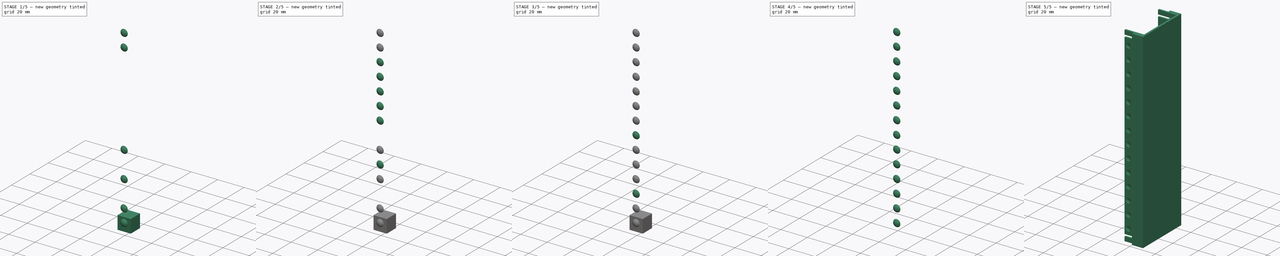
[diagram: build sequence overview — one tinted view per stage of 5, left to right]
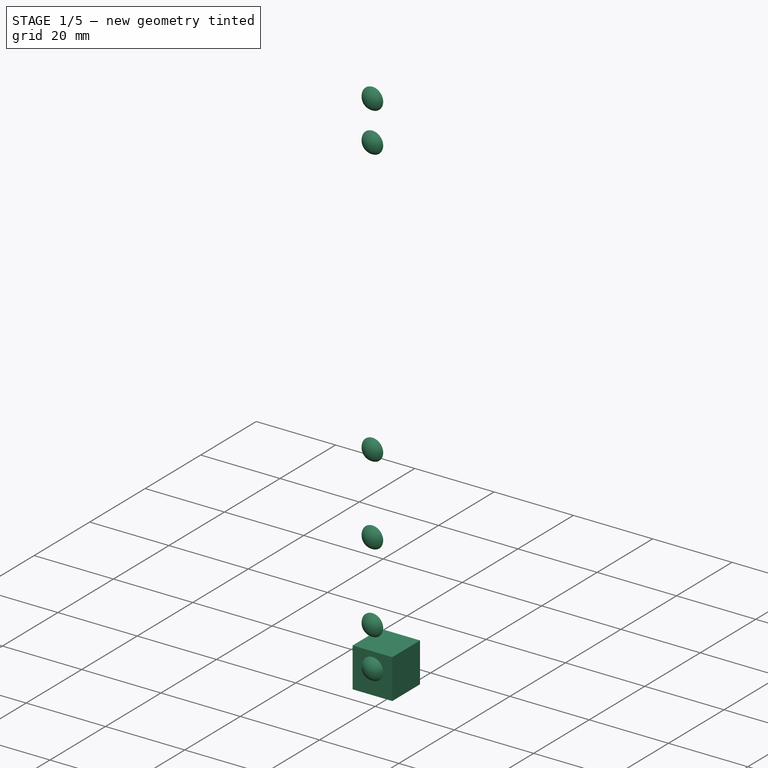
[diagram: stage 1 of 5 — iso view after this stage's code; geometry added in this stage tinted green]
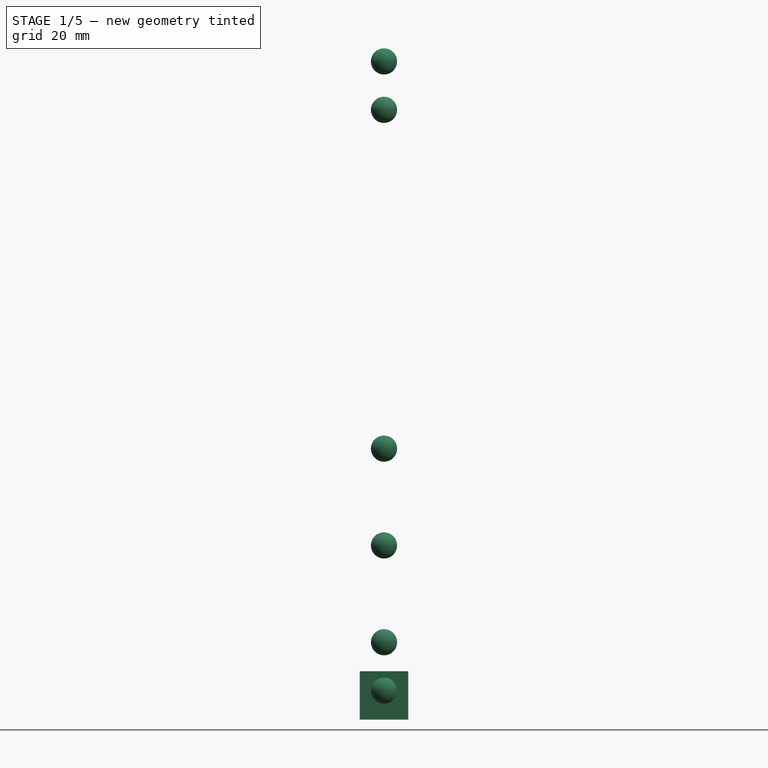
[diagram: stage 1 of 5 — front view after this stage's code; geometry added in this stage tinted green]
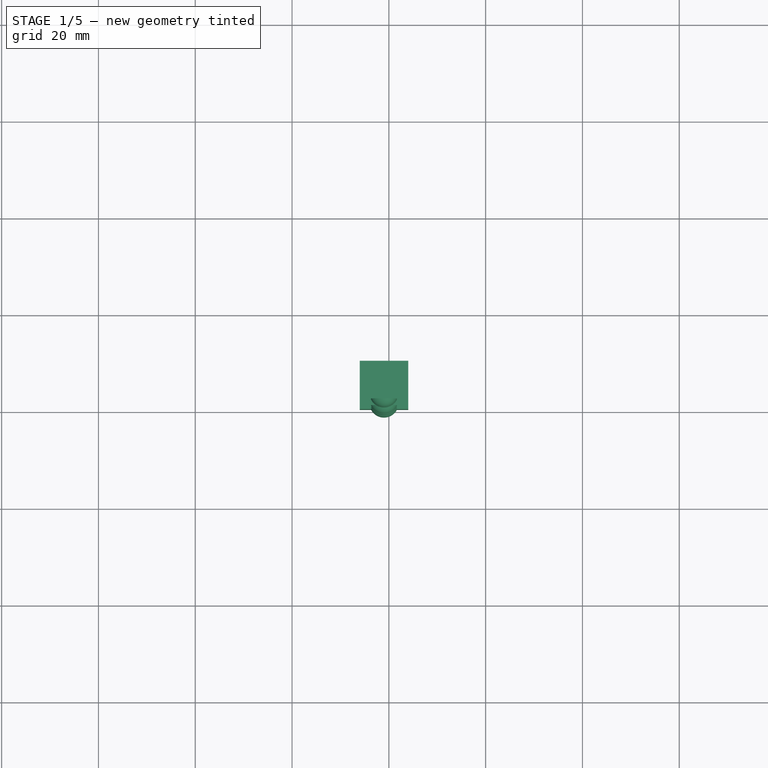
[diagram: stage 1 of 5 — top view after this stage's code; geometry added in this stage tinted green]
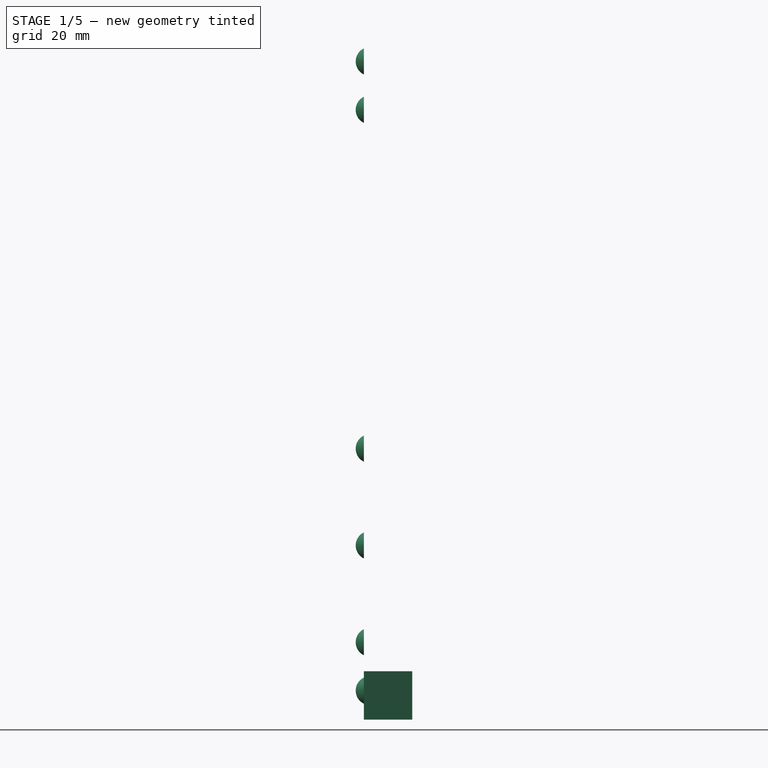
[diagram: stage 1 of 5 — right view after this stage's code; geometry added in this stage tinted green]
FCSTD DOCUMENT  (FreeCAD 0.17R13522 (Git))
Label: BaseClippedSide
License: All rights reserved
LicenseURL: http://en.wikipedia.org/wiki/All_rights_reserved
objects: Part::Cut×29, Part::Box×28, Part::Sphere×28, Part::Extrusion×8, Part::MultiFuse×8, Sketcher::SketchObject×6
note: 107 computed .brp shape members not serialized (recipe doc carries the construction recipe); baked Part::Feature solids carry a one-line shape summary decoded from their .brp

FEATURE [Part::Sphere] Sphere033
  Angle1 = -90
  Angle2 = 90
  Angle3 = 360
  AttacherType = Attacher::AttachEngine3D
  Placement = pos=(-1,21.8,6) rot=(0,0,1;0rad)
  Radius = 3
FEATURE [Part::Box] Box042  label="Cube040"
  AttacherType = Attacher::AttachEngine3D
  Height = 10
  Length = 10
  Placement = pos=(-6,20.5,0) rot=(0,0,1;0rad)
  Width = 10
FEATURE [Part::Box] Box040  label="Cube038"
  AttacherType = Attacher::AttachEngine3D
  Height = 10
  Length = 10
  Placement = pos=(-6,20.5,0) rot=(0,0,1;0rad)
  Width = 10
FEATURE [Part::Cut] Cut039  label="NobHole037"
  Base = -> Sphere033
  Placement = pos=(0,0,120) rot=(0,0,1;0rad)
  Tool = -> Box040
FEATURE [Part::Box] Box049  label="Cube047"
  AttacherType = Attacher::AttachEngine3D
  Height = 10
  Length = 10
  Placement = pos=(-6,20.5,0) rot=(0,0,1;0rad)
  Width = 10
FEATURE [Part::Box] Box047  label="Cube045"
  AttacherType = Attacher::AttachEngine3D
  Height = 10
  Length = 10
  Placement = pos=(-6,20.5,0) rot=(0,0,1;0rad)
  Width = 10
FEATURE [Part::Box] Box046  label="Cube044"
  AttacherType = Attacher::AttachEngine3D
  Height = 10
  Length = 10
  Placement = pos=(-6,20.5,0) rot=(0,0,1;0rad)
  Width = 10
FEATURE [Part::Sphere] Sphere038
  Angle1 = -90
  Angle2 = 90
  Angle3 = 360
  AttacherType = Attacher::AttachEngine3D
  Placement = pos=(-1,21.8,6) rot=(0,0,1;0rad)
  Radius = 3
FEATURE [Part::Sphere] Sphere036
  Angle1 = -90
  Angle2 = 90
  Angle3 = 360
  AttacherType = Attacher::AttachEngine3D
  Placement = pos=(-1,21.8,6) rot=(0,0,1;0rad)
  Radius = 3
FEATURE [Part::Cut] Cut041  label="NobHole039"
  Base = -> Sphere036
  Placement = pos=(0,0,30) rot=(0,0,1;0rad)
  Tool = -> Box049
FEATURE [Part::Sphere] Sphere039
  Angle1 = -90
  Angle2 = 90
  Angle3 = 360
  AttacherType = Attacher::AttachEngine3D
  Placement = pos=(-1,21.8,6) rot=(0,0,1;0rad)
  Radius = 3
FEATURE [Part::Sphere] Sphere041
  Angle1 = -90
  Angle2 = 90
  Angle3 = 360
  AttacherType = Attacher::AttachEngine3D
  Placement = pos=(-1,21.8,6) rot=(0,0,1;0rad)
  Radius = 3
FEATURE [Part::Cut] Cut040  label="NobHole038"
  Base = -> Sphere041
  Placement = pos=(0,0,10) rot=(0,0,1;0rad)
  Tool = -> Box042
FEATURE [Part::Sphere] Sphere037
  Angle1 = -90
  Angle2 = 90
  Angle3 = 360
  AttacherType = Attacher::AttachEngine3D
  Placement = pos=(-1,21.8,6) rot=(0,0,1;0rad)
  Radius = 3
FEATURE [Part::Box] Box045  label="Cube043"
  AttacherType = Attacher::AttachEngine3D
  Height = 10
  Length = 10
  Placement = pos=(-6,20.5,0) rot=(0,0,1;0rad)
  Width = 10
FEATURE [Part::Box] Box048  label="Cube046"
  AttacherType = Attacher::AttachEngine3D
  Height = 10
  Length = 10
  Placement = pos=(-6,20.5,0) rot=(0,0,1;0rad)
  Width = 10
FEATURE [Part::Cut] Cut042  label="NobHole040"
  Base = -> Sphere037
  Placement = pos=(0,0,50) rot=(0,0,1;0rad)
  Tool = -> Box048
FEATURE [Part::Sphere] Sphere040
  Angle1 = -90
  Angle2 = 90
  Angle3 = 360
  AttacherType = Attacher::AttachEngine3D
  Placement = pos=(-1,21.8,6) rot=(0,0,1;0rad)
  Radius = 3
FEATURE [Part::Sphere] Sphere042
  Angle1 = -90
  Angle2 = 90
  Angle3 = 360
  AttacherType = Attacher::AttachEngine3D
  Placement = pos=(-1,21.8,6) rot=(0,0,1;0rad)
  Radius = 3
FEATURE [Part::Cut] Cut043  label="NobHole041"
  Base = -> Sphere042
  Placement = pos=(0,0,130) rot=(0,0,1;0rad)
  Tool = -> Box045
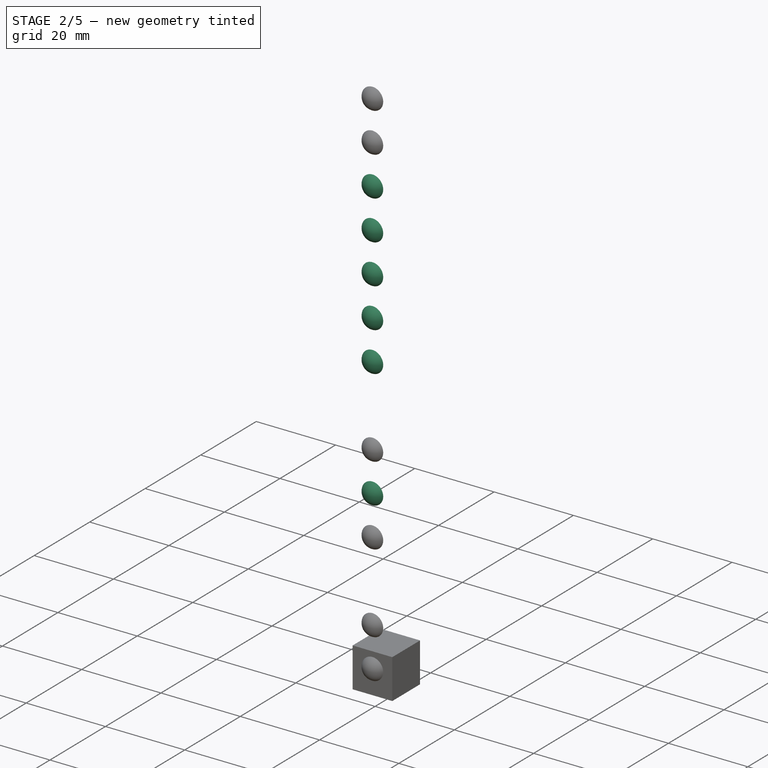
[diagram: stage 2 of 5 — iso view after this stage's code; geometry added in this stage tinted green]
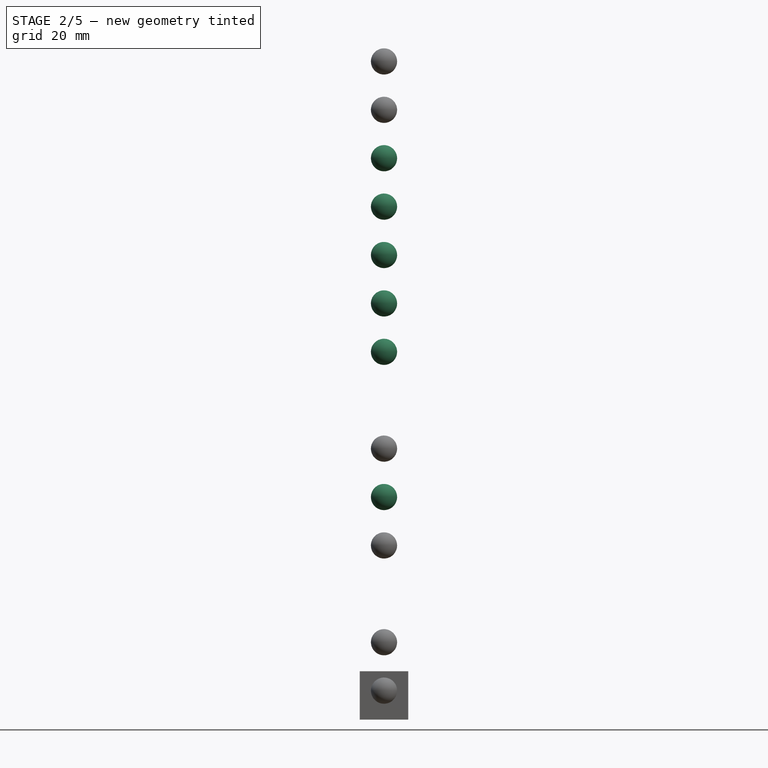
[diagram: stage 2 of 5 — front view after this stage's code; geometry added in this stage tinted green]
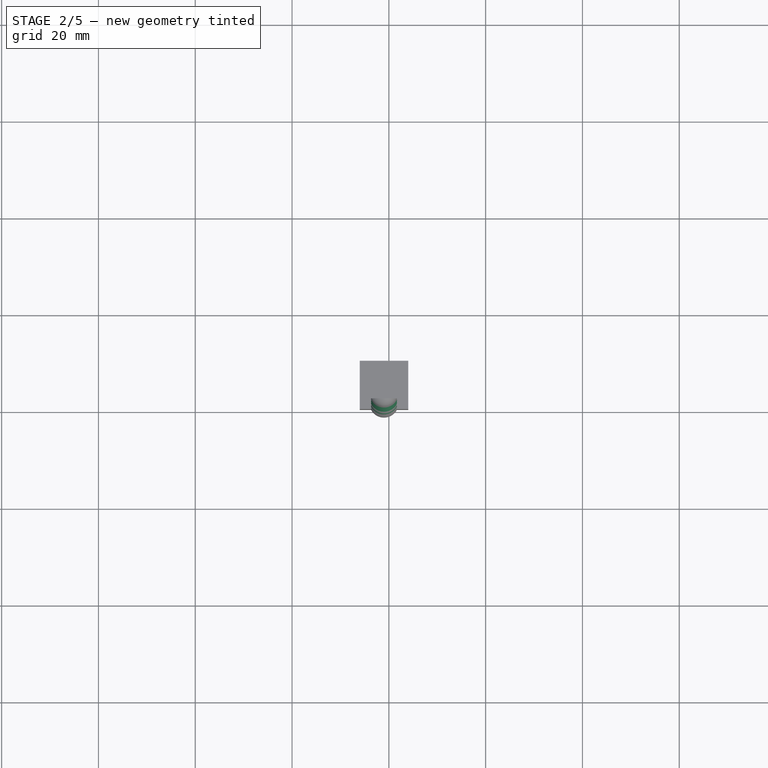
[diagram: stage 2 of 5 — top view after this stage's code; geometry added in this stage tinted green]
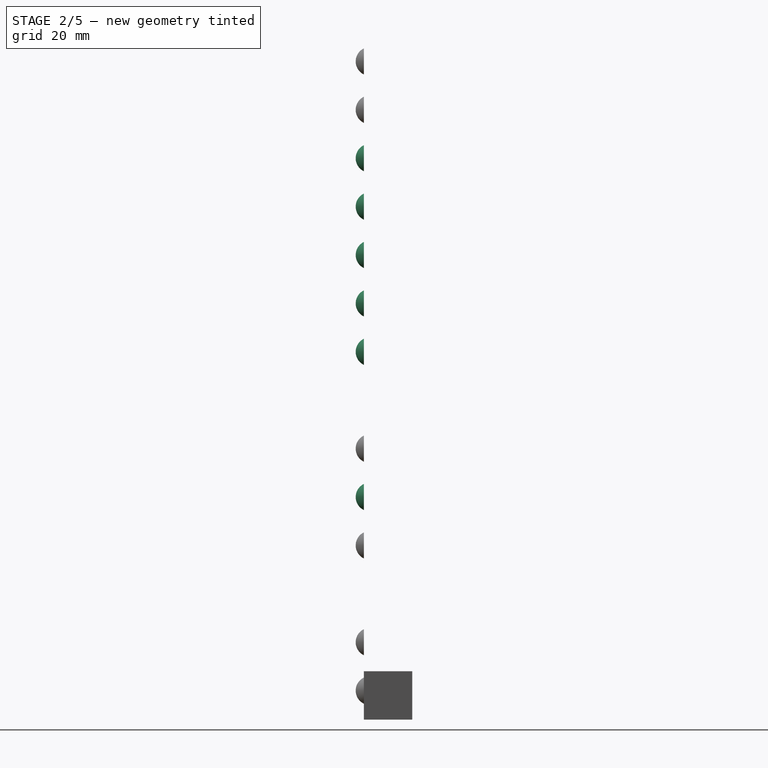
[diagram: stage 2 of 5 — right view after this stage's code; geometry added in this stage tinted green]
FEATURE [Part::Sphere] Sphere031
  Angle1 = -90
  Angle2 = 90
  Angle3 = 360
  AttacherType = Attacher::AttachEngine3D
  Placement = pos=(-1,21.8,6) rot=(0,0,1;0rad)
  Radius = 3
FEATURE [Part::Sphere] Sphere030
  Angle1 = -90
  Angle2 = 90
  Angle3 = 360
  AttacherType = Attacher::AttachEngine3D
  Placement = pos=(-1,21.8,6) rot=(0,0,1;0rad)
  Radius = 3
FEATURE [Part::Box] Box036  label="Cube034"
  AttacherType = Attacher::AttachEngine3D
  Height = 10
  Length = 10
  Placement = pos=(-6,20.5,0) rot=(0,0,1;0rad)
  Width = 10
FEATURE [Part::Sphere] Sphere032
  Angle1 = -90
  Angle2 = 90
  Angle3 = 360
  AttacherType = Attacher::AttachEngine3D
  Placement = pos=(-1,21.8,6) rot=(0,0,1;0rad)
  Radius = 3
FEATURE [Part::Sphere] Sphere029
  Angle1 = -90
  Angle2 = 90
  Angle3 = 360
  AttacherType = Attacher::AttachEngine3D
  Placement = pos=(-1,21.8,6) rot=(0,0,1;0rad)
  Radius = 3
FEATURE [Part::Cut] Cut036  label="NobHole034"
  Base = -> Sphere029
  Placement = pos=(0,0,90) rot=(0,0,1;0rad)
  Tool = -> Box036
FEATURE [Part::Box] Box044  label="Cube042"
  AttacherType = Attacher::AttachEngine3D
  Height = 10
  Length = 10
  Placement = pos=(-6,20.5,0) rot=(0,0,1;0rad)
  Width = 10
FEATURE [Part::Box] Box039  label="Cube037"
  AttacherType = Attacher::AttachEngine3D
  Height = 10
  Length = 10
  Placement = pos=(-6,20.5,0) rot=(0,0,1;0rad)
  Width = 10
FEATURE [Part::Cut] Cut037  label="NobHole035"
  Base = -> Sphere031
  Placement = pos=(0,0,100) rot=(0,0,1;0rad)
  Tool = -> Box039
FEATURE [Part::Box] Box043  label="Cube041"
  AttacherType = Attacher::AttachEngine3D
  Height = 10
  Length = 10
  Placement = pos=(-6,20.5,0) rot=(0,0,1;0rad)
  Width = 10
FEATURE [Part::Box] Box037  label="Cube035"
  AttacherType = Attacher::AttachEngine3D
  Height = 10
  Length = 10
  Placement = pos=(-6,20.5,0) rot=(0,0,1;0rad)
  Width = 10
FEATURE [Part::Cut] Cut033  label="NobHole031"
  Base = -> Sphere030
  Placement = pos=(0,0,110) rot=(0,0,1;0rad)
  Tool = -> Box037
FEATURE [Part::Box] Box038  label="Cube036"
  AttacherType = Attacher::AttachEngine3D
  Height = 10
  Length = 10
  Placement = pos=(-6,20.5,0) rot=(0,0,1;0rad)
  Width = 10
FEATURE [Part::Box] Box041  label="Cube039"
  AttacherType = Attacher::AttachEngine3D
  Height = 10
  Length = 10
  Placement = pos=(-6,20.5,0) rot=(0,0,1;0rad)
  Width = 10
FEATURE [Part::Cut] Cut032  label="NobHole030"
  Base = -> Sphere032
  Placement = pos=(0,0,80) rot=(0,0,1;0rad)
  Tool = -> Box041
FEATURE [Part::Sphere] Sphere034
  Angle1 = -90
  Angle2 = 90
  Angle3 = 360
  AttacherType = Attacher::AttachEngine3D
  Placement = pos=(-1,21.8,6) rot=(0,0,1;0rad)
  Radius = 3
FEATURE [Part::Cut] Cut034  label="NobHole032"
  Base = -> Sphere034
  Placement = pos=(0,0,70) rot=(0,0,1;0rad)
  Tool = -> Box038
FEATURE [Part::Sphere] Sphere035
  Angle1 = -90
  Angle2 = 90
  Angle3 = 360
  AttacherType = Attacher::AttachEngine3D
  Placement = pos=(-1,21.8,6) rot=(0,0,1;0rad)
  Radius = 3
FEATURE [Part::Cut] Cut035  label="NobHole033"
  Base = -> Sphere035
  Placement = pos=(0,0,40) rot=(0,0,1;0rad)
  Tool = -> Box047
FEATURE [Part::Cut] Cut038  label="NobHole036"
  Base = -> Sphere040
  Tool = -> Box044
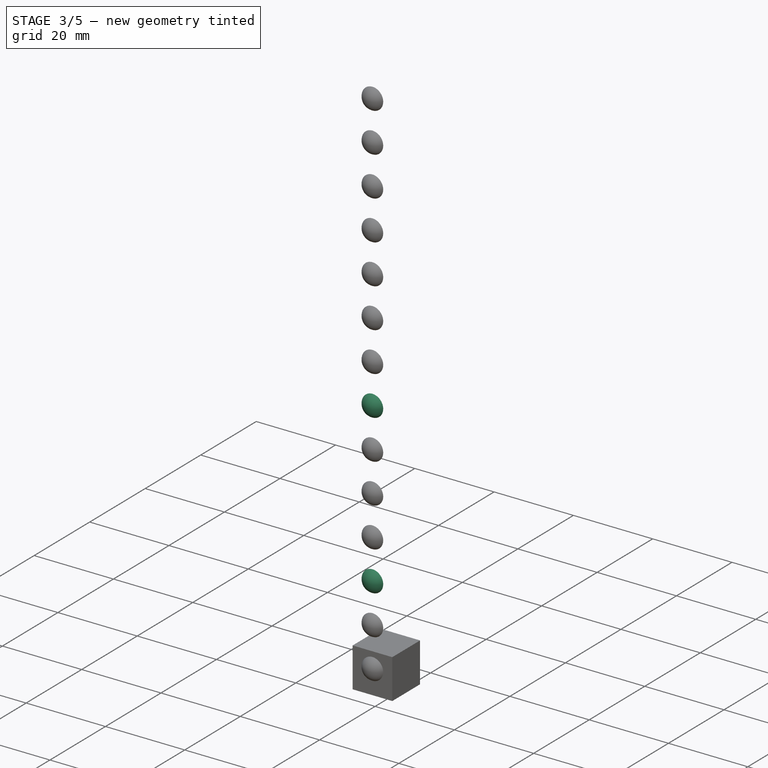
[diagram: stage 3 of 5 — iso view after this stage's code; geometry added in this stage tinted green]
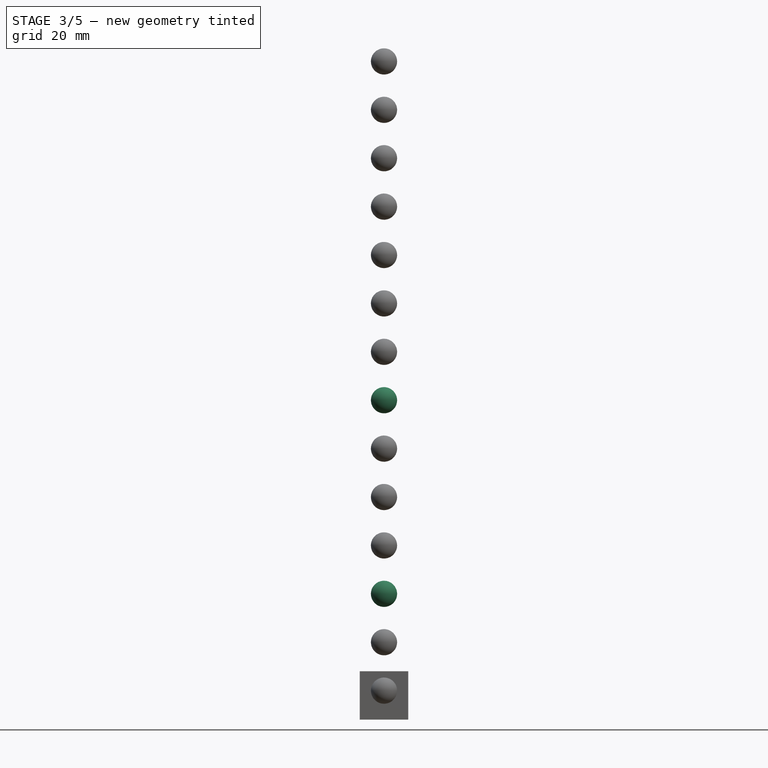
[diagram: stage 3 of 5 — front view after this stage's code; geometry added in this stage tinted green]
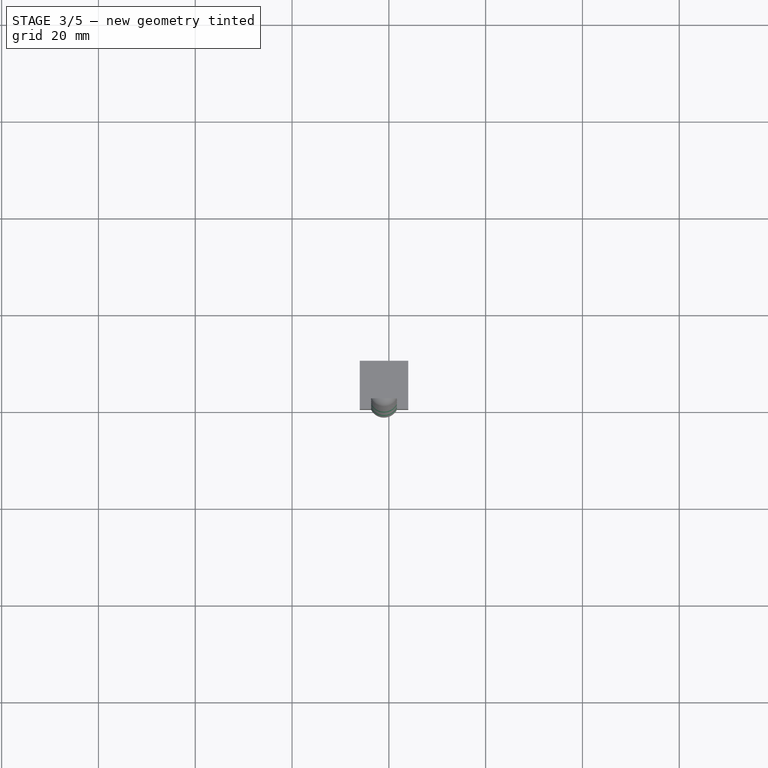
[diagram: stage 3 of 5 — top view after this stage's code; geometry added in this stage tinted green]
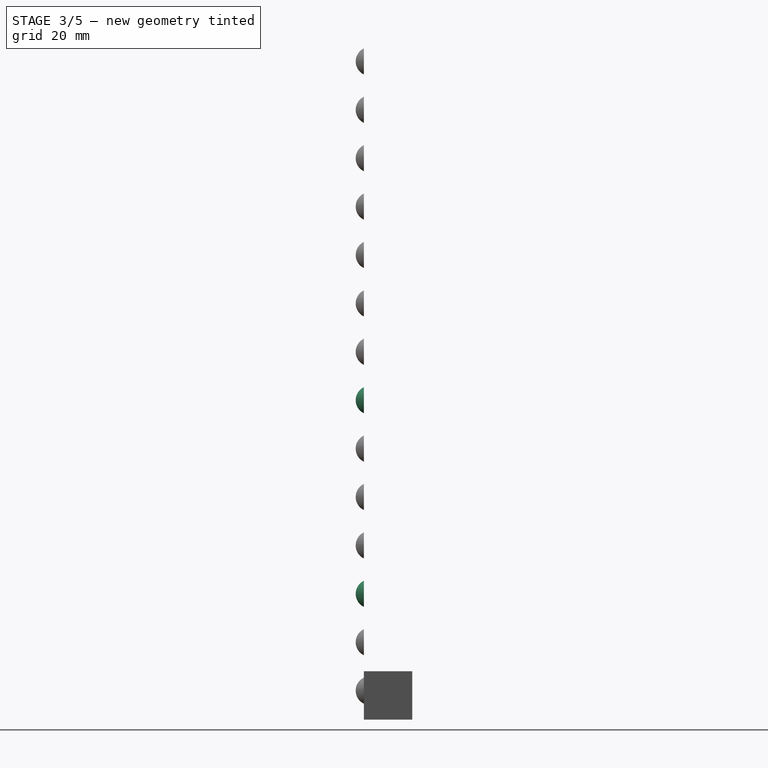
[diagram: stage 3 of 5 — right view after this stage's code; geometry added in this stage tinted green]
FEATURE [Part::Box] Box019  label="Cube017"
  AttacherType = Attacher::AttachEngine3D
  Height = 10
  Length = 10
  Placement = pos=(-6,20.5,0) rot=(0,0,1;0rad)
  Width = 10
FEATURE [Part::Box] Box018  label="Cube016"
  AttacherType = Attacher::AttachEngine3D
  Height = 10
  Length = 10
  Placement = pos=(-6,20.5,0) rot=(0,0,1;0rad)
  Width = 10
FEATURE [Part::Sphere] Sphere012
  Angle1 = -90
  Angle2 = 90
  Angle3 = 360
  AttacherType = Attacher::AttachEngine3D
  Placement = pos=(-1,21.8,6) rot=(0,0,1;0rad)
  Radius = 3
FEATURE [Part::Sphere] Sphere011
  Angle1 = -90
  Angle2 = 90
  Angle3 = 360
  AttacherType = Attacher::AttachEngine3D
  Placement = pos=(-1,21.8,6) rot=(0,0,1;0rad)
  Radius = 3
FEATURE [Part::Box] Box016  label="Cube014"
  AttacherType = Attacher::AttachEngine3D
  Height = 10
  Length = 10
  Placement = pos=(-6,20.5,0) rot=(0,0,1;0rad)
  Width = 10
FEATURE [Part::Sphere] Sphere009
  Angle1 = -90
  Angle2 = 90
  Angle3 = 360
  AttacherType = Attacher::AttachEngine3D
  Placement = pos=(-1,21.8,6) rot=(0,0,1;0rad)
  Radius = 3
FEATURE [Part::Sphere] Sphere004
  Angle1 = -90
  Angle2 = 90
  Angle3 = 360
  AttacherType = Attacher::AttachEngine3D
  Placement = pos=(-1,21.8,6) rot=(0,0,1;0rad)
  Radius = 3
FEATURE [Part::Box] Box011  label="Cube009"
  AttacherType = Attacher::AttachEngine3D
  Height = 10
  Length = 10
  Placement = pos=(-6,20.5,0) rot=(0,0,1;0rad)
  Width = 10
FEATURE [Part::Box] Box010  label="Cube008"
  AttacherType = Attacher::AttachEngine3D
  Height = 10
  Length = 10
  Placement = pos=(-6,20.5,0) rot=(0,0,1;0rad)
  Width = 10
FEATURE [Part::Sphere] Sphere003
  Angle1 = -90
  Angle2 = 90
  Angle3 = 360
  AttacherType = Attacher::AttachEngine3D
  Placement = pos=(-1,21.8,6) rot=(0,0,1;0rad)
  Radius = 3
FEATURE [Part::Cut] Cut010  label="NobHole008"
  Base = -> Sphere009
  Placement = pos=(0,0,80) rot=(0,0,1;0rad)
  Tool = -> Box016
FEATURE [Part::Cut] Cut004  label="NobHole002"
  Base = -> Sphere003
  Placement = pos=(0,0,20) rot=(0,0,1;0rad)
  Tool = -> Box010
FEATURE [Part::Cut] Cut012  label="NobHole010"
  Base = -> Sphere011
  Placement = pos=(0,0,100) rot=(0,0,1;0rad)
  Tool = -> Box018
FEATURE [Part::Cut] Cut013  label="NobHole011"
  Base = -> Sphere012
  Placement = pos=(0,0,110) rot=(0,0,1;0rad)
  Tool = -> Box019
FEATURE [Part::Cut] Cut005  label="NobHole003"
  Base = -> Sphere004
  Placement = pos=(0,0,30) rot=(0,0,1;0rad)
  Tool = -> Box011
FEATURE [Part::Sphere] Sphere013
  Angle1 = -90
  Angle2 = 90
  Angle3 = 360
  AttacherType = Attacher::AttachEngine3D
  Placement = pos=(-1,21.8,6) rot=(0,0,1;0rad)
  Radius = 3
FEATURE [Part::Box] Box020  label="Cube018"
  AttacherType = Attacher::AttachEngine3D
  Height = 10
  Length = 10
  Placement = pos=(-6,20.5,0) rot=(0,0,1;0rad)
  Width = 10
FEATURE [Part::Sphere] Sphere014
  Angle1 = -90
  Angle2 = 90
  Angle3 = 360
  AttacherType = Attacher::AttachEngine3D
  Placement = pos=(-1,21.8,6) rot=(0,0,1;0rad)
  Radius = 3
FEATURE [Part::Box] Box021  label="Cube019"
  AttacherType = Attacher::AttachEngine3D
  Height = 10
  Length = 10
  Placement = pos=(-6,20.5,0) rot=(0,0,1;0rad)
  Width = 10
FEATURE [Part::Cut] Cut030  label="NobHole028"
  Base = -> Sphere038
  Placement = pos=(0,0,20) rot=(0,0,1;0rad)
  Tool = -> Box043
FEATURE [Part::Cut] Cut031  label="NobHole029"
  Base = -> Sphere039
  Placement = pos=(0,0,60) rot=(0,0,1;0rad)
  Tool = -> Box046
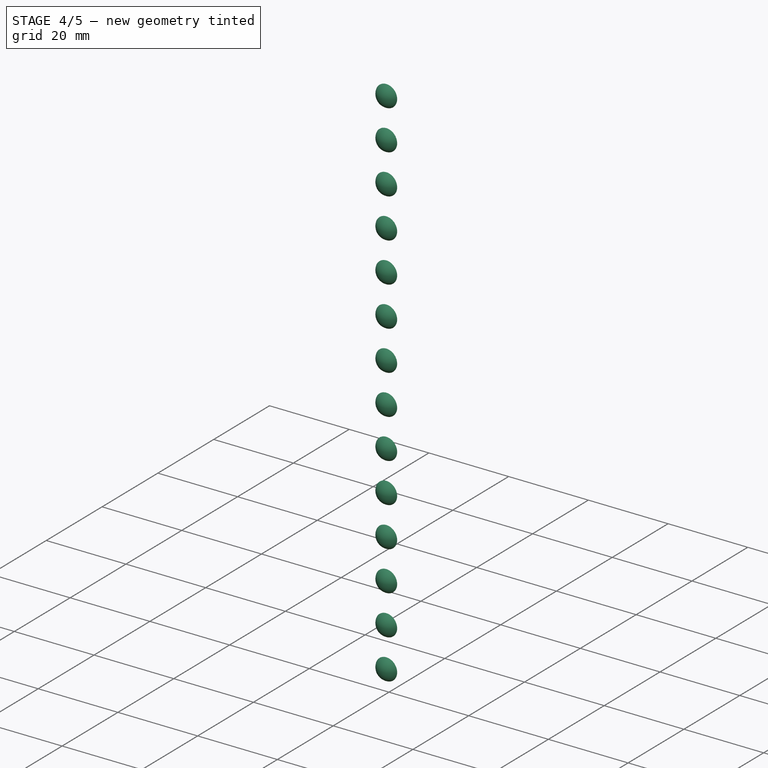
[diagram: stage 4 of 5 — iso view after this stage's code; geometry added in this stage tinted green]
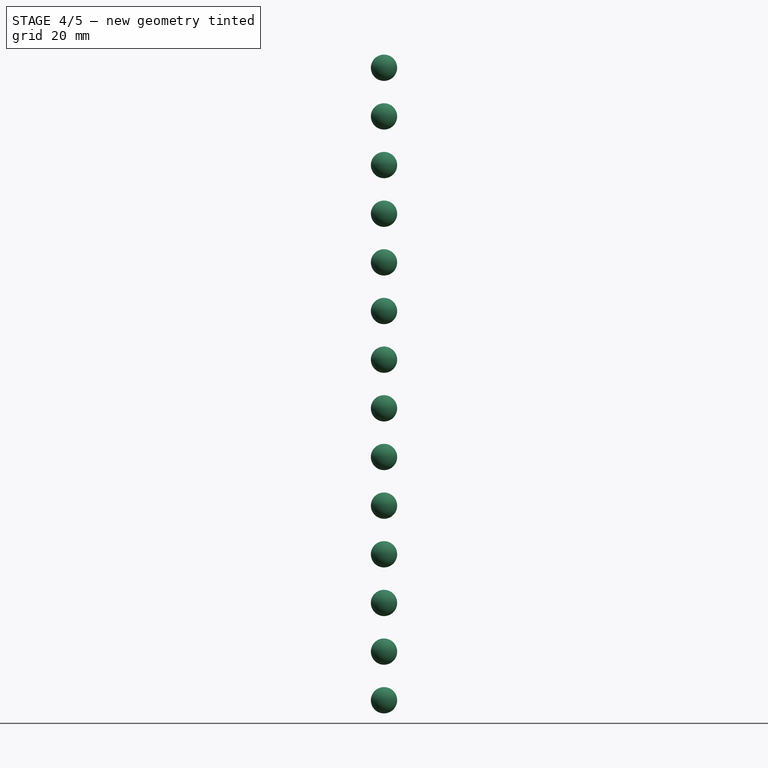
[diagram: stage 4 of 5 — front view after this stage's code; geometry added in this stage tinted green]
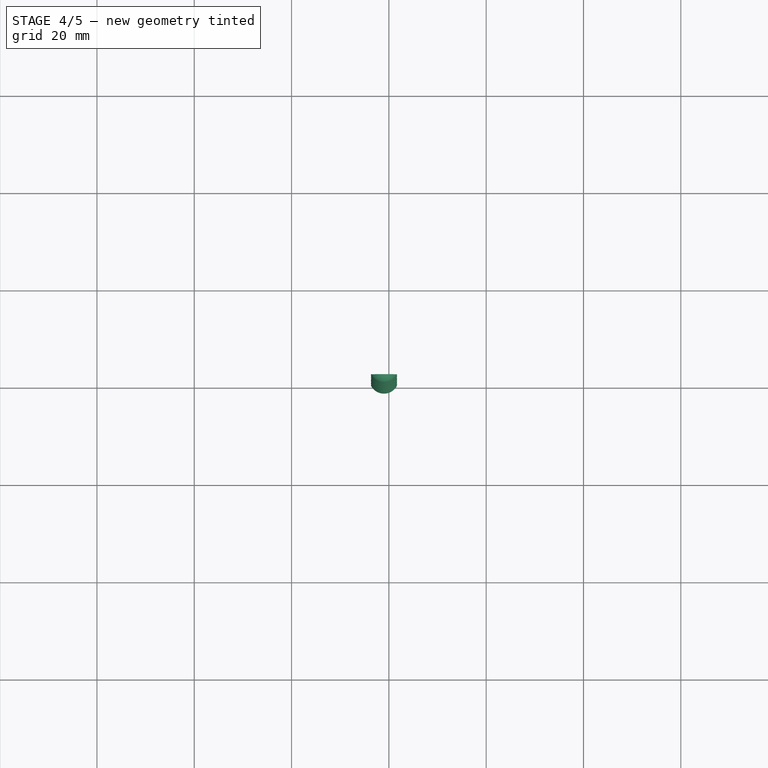
[diagram: stage 4 of 5 — top view after this stage's code; geometry added in this stage tinted green]
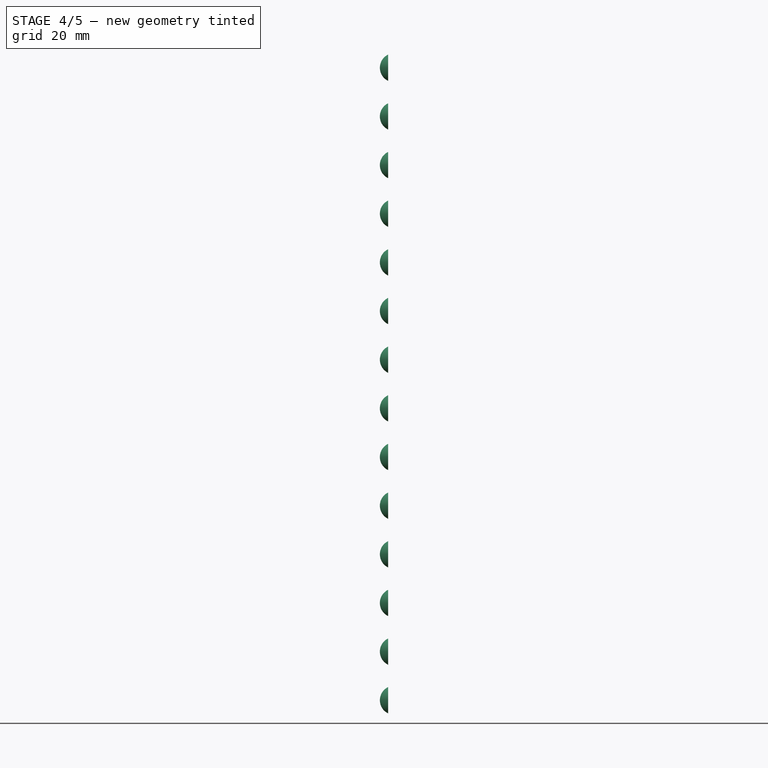
[diagram: stage 4 of 5 — right view after this stage's code; geometry added in this stage tinted green]
FEATURE [Part::Box] Box017  label="Cube015"
  AttacherType = Attacher::AttachEngine3D
  Height = 10
  Length = 10
  Placement = pos=(-6,20.5,0) rot=(0,0,1;0rad)
  Width = 10
FEATURE [Part::Sphere] Sphere010
  Angle1 = -90
  Angle2 = 90
  Angle3 = 360
  AttacherType = Attacher::AttachEngine3D
  Placement = pos=(-1,21.8,6) rot=(0,0,1;0rad)
  Radius = 3
FEATURE [Part::Box] Box013  label="Cube011"
  AttacherType = Attacher::AttachEngine3D
  Height = 10
  Length = 10
  Placement = pos=(-6,20.5,0) rot=(0,0,1;0rad)
  Width = 10
FEATURE [Part::Sphere] Sphere007
  Angle1 = -90
  Angle2 = 90
  Angle3 = 360
  AttacherType = Attacher::AttachEngine3D
  Placement = pos=(-1,21.8,6) rot=(0,0,1;0rad)
  Radius = 3
FEATURE [Part::Box] Box015  label="Cube013"
  AttacherType = Attacher::AttachEngine3D
  Height = 10
  Length = 10
  Placement = pos=(-6,20.5,0) rot=(0,0,1;0rad)
  Width = 10
FEATURE [Part::Sphere] Sphere008
  Angle1 = -90
  Angle2 = 90
  Angle3 = 360
  AttacherType = Attacher::AttachEngine3D
  Placement = pos=(-1,21.8,6) rot=(0,0,1;0rad)
  Radius = 3
FEATURE [Part::Sphere] Sphere006
  Angle1 = -90
  Angle2 = 90
  Angle3 = 360
  AttacherType = Attacher::AttachEngine3D
  Placement = pos=(-1,21.8,6) rot=(0,0,1;0rad)
  Radius = 3
FEATURE [Part::Box] Box012  label="Cube010"
  AttacherType = Attacher::AttachEngine3D
  Height = 10
  Length = 10
  Placement = pos=(-6,20.5,0) rot=(0,0,1;0rad)
  Width = 10
FEATURE [Part::Box] Box014  label="Cube012"
  AttacherType = Attacher::AttachEngine3D
  Height = 10
  Length = 10
  Placement = pos=(-6,20.5,0) rot=(0,0,1;0rad)
  Width = 10
FEATURE [Part::Sphere] Sphere005
  Angle1 = -90
  Angle2 = 90
  Angle3 = 360
  AttacherType = Attacher::AttachEngine3D
  Placement = pos=(-1,21.8,6) rot=(0,0,1;0rad)
  Radius = 3
FEATURE [Part::Box] Box009  label="Cube007"
  AttacherType = Attacher::AttachEngine3D
  Height = 10
  Length = 10
  Placement = pos=(-6,20.5,0) rot=(0,0,1;0rad)
  Width = 10
FEATURE [Part::Sphere] Sphere002
  Angle1 = -90
  Angle2 = 90
  Angle3 = 360
  AttacherType = Attacher::AttachEngine3D
  Placement = pos=(-1,21.8,6) rot=(0,0,1;0rad)
  Radius = 3
FEATURE [Part::Cut] Cut003  label="NobHole001"
  Base = -> Sphere002
  Placement = pos=(0,0,10) rot=(0,0,1;0rad)
  Tool = -> Box009
FEATURE [Part::Cut] Cut006  label="NobHole004"
  Base = -> Sphere005
  Placement = pos=(0,0,40) rot=(0,0,1;0rad)
  Tool = -> Box012
FEATURE [Part::Cut] Cut011  label="NobHole009"
  Base = -> Sphere010
  Placement = pos=(0,0,90) rot=(0,0,1;0rad)
  Tool = -> Box017
FEATURE [Part::Cut] Cut008  label="NobHole006"
  Base = -> Sphere007
  Placement = pos=(0,0,60) rot=(0,0,1;0rad)
  Tool = -> Box014
FEATURE [Part::Cut] Cut007  label="NobHole005"
  Base = -> Sphere006
  Placement = pos=(0,0,50) rot=(0,0,1;0rad)
  Tool = -> Box013
FEATURE [Part::Cut] Cut009  label="NobHole007"
  Base = -> Sphere008
  Placement = pos=(0,0,70) rot=(0,0,1;0rad)
  Tool = -> Box015
FEATURE [Part::Cut] Cut014  label="NobHole012"
  Base = -> Sphere013
  Placement = pos=(0,0,120) rot=(0,0,1;0rad)
  Tool = -> Box020
FEATURE [Part::Cut] Cut015  label="NobHole013"
  Base = -> Sphere014
  Placement = pos=(0,0,130) rot=(0,0,1;0rad)
  Tool = -> Box021
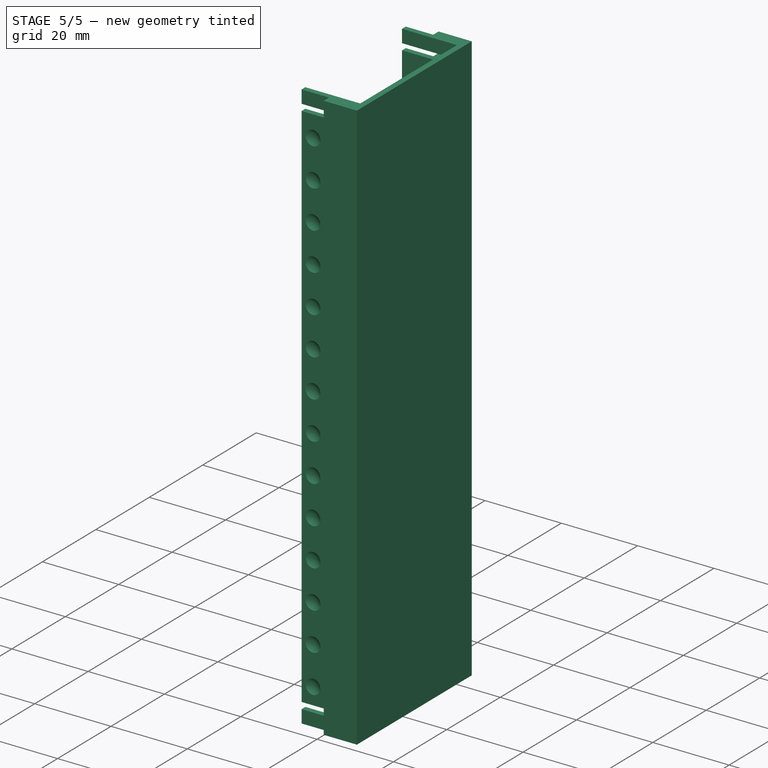
[diagram: stage 5 of 5 — iso view after this stage's code; geometry added in this stage tinted green]
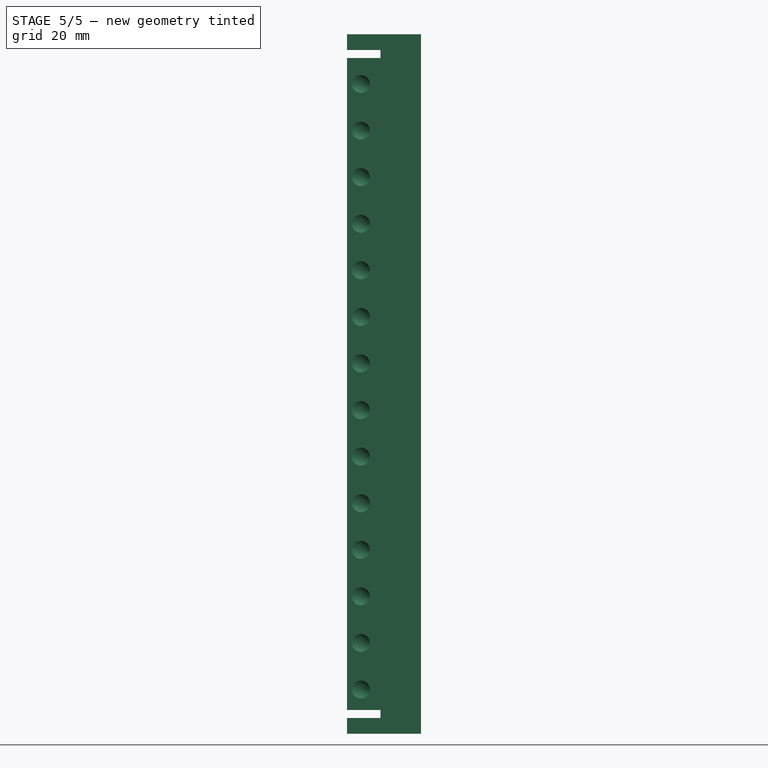
[diagram: stage 5 of 5 — front view after this stage's code; geometry added in this stage tinted green]
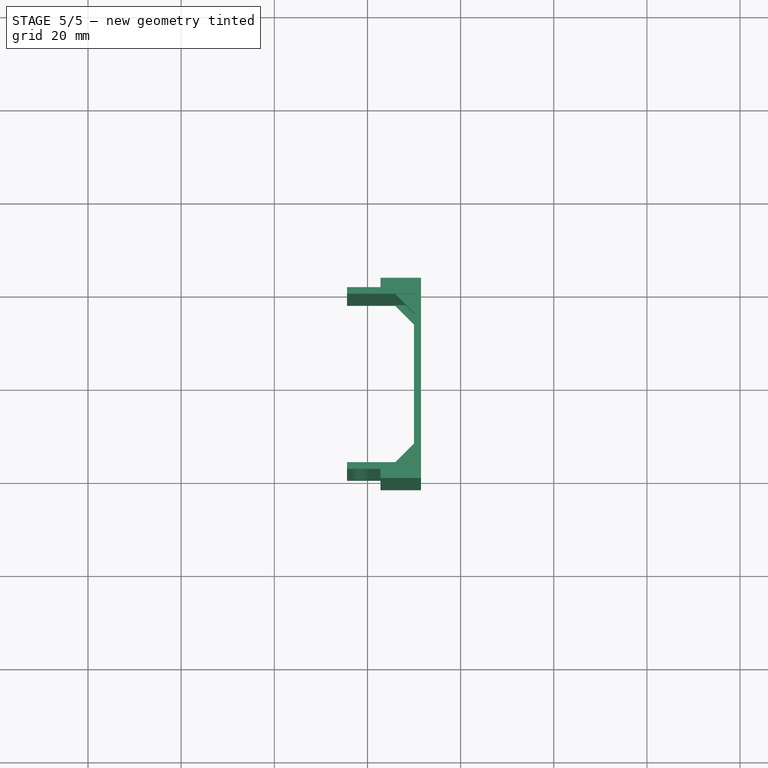
[diagram: stage 5 of 5 — top view after this stage's code; geometry added in this stage tinted green]
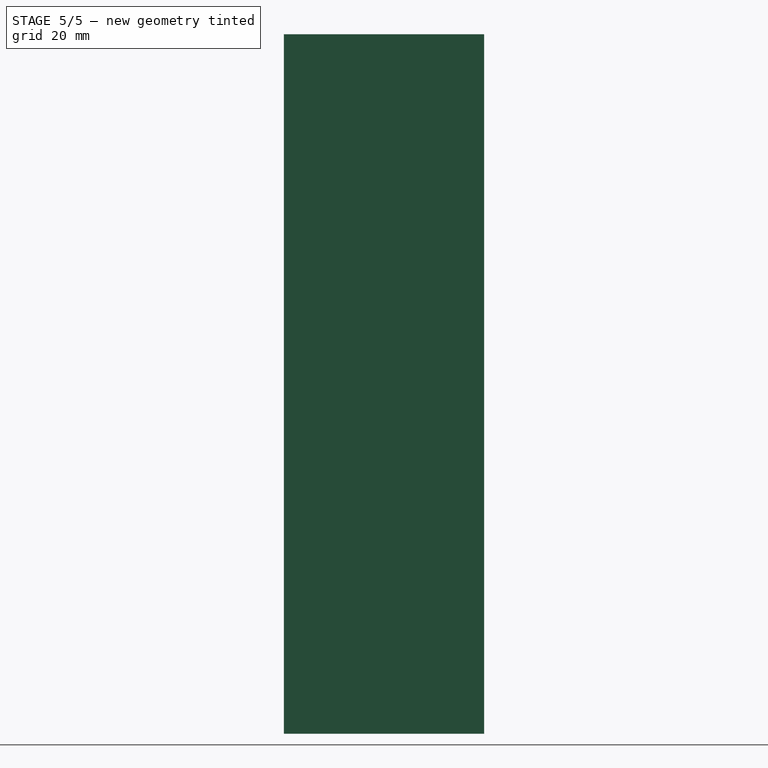
[diagram: stage 5 of 5 — right view after this stage's code; geometry added in this stage tinted green]
FEATURE [Part::Box] Box008  label="Cube006"
  AttacherType = Attacher::AttachEngine3D
  Height = 10
  Length = 10
  Placement = pos=(-6,20.5,0) rot=(0,0,1;0rad)
  Width = 10
FEATURE [Part::Sphere] Sphere001
  Angle1 = -90
  Angle2 = 90
  Angle3 = 360
  AttacherType = Attacher::AttachEngine3D
  Placement = pos=(-1,21.8,6) rot=(0,0,1;0rad)
  Radius = 3
FEATURE [Part::Cut] Cut002  label="NobHole"
  Base = -> Sphere001
  Tool = -> Box008
FEATURE [Sketcher::SketchObject] Sketch006
  sketch-geometry (12):
    g0: LineSegment StartX=-14.4 StartY=18.1 StartZ=0 EndX=0 EndY=18.1 EndZ=0
    g1: LineSegment StartX=-14.4 StartY=19.5 StartZ=0 EndX=-7.2 EndY=19.5 EndZ=0
    g2: LineSegment StartX=-7.2 StartY=19.5 StartZ=0 EndX=-7.2 EndY=21 EndZ=0
    g3: LineSegment StartX=-7.2 StartY=21 StartZ=0 EndX=1 EndY=21 EndZ=0
    g4: LineSegment StartX=1 StartY=21 StartZ=0 EndX=1 EndY=-21 EndZ=0
    g5: LineSegment StartX=1 StartY=-21 StartZ=0 EndX=-7.2 EndY=-21 EndZ=0
    g6: LineSegment StartX=-7.2 StartY=-21 StartZ=0 EndX=-7.2 EndY=-19.5 EndZ=0
    g7: LineSegment StartX=-7.2 StartY=-19.5 StartZ=0 EndX=-14.4 EndY=-19.5 EndZ=0
    g8: LineSegment StartX=-14.4 StartY=-19.5 StartZ=0 EndX=-14.4 EndY=-18.1 EndZ=0
    g9: LineSegment StartX=-14.4 StartY=-18.1 StartZ=0 EndX=0 EndY=-18.1 EndZ=0
    g10: LineSegment StartX=0 StartY=-18.1 StartZ=0 EndX=0 EndY=18.1 EndZ=0
    g11: LineSegment StartX=-14.4 StartY=18.1 StartZ=0 EndX=-14.4 EndY=19.5 EndZ=0
  constraints (35):
    c: Coincident(g11,g0)
    c: Coincident(g11,g1)
    c: Coincident(g2,g1)
    c: Coincident(g2,g3)
    c: Coincident(g4,g3)
    c: Coincident(g8,g9)
    c: Coincident(g8,g7)
    c: Coincident(g7,g6)
    c: Coincident(g6,g5)
    c: Coincident(g4,g5)
    c: Parallel(g11,g2)
    c: Parallel(g10,g4)
    c: Parallel(g6,g8)
    c: Parallel(g8,g-2)
    c: Parallel(g3,g1)
    c: Parallel(g1,g0)
    c: Parallel(g0,g9)
    c: Parallel(g9,g7)
    c: Distance(g4) = 42
    c: Equal(g0,g9)
    c: DistanceX(g10,g4) = 1
    c: Symmetric(g10,g10,g-1)
    c: PointOnObject(g10,g-2)
    c: DistanceY(g4,g10) = 2.9
    c: DistanceY(g10,g3) = 2.9
    c: Distance(g2) = 1.5
    c: Angle(g2,g3) = 1.5708
    c: Angle(g3,g4) = 1.5708
    c: Distance(g6) = 1.5
    c: DistanceX(g0,g10) = 14.4
    c: DistanceX(g2,g3) = 8.2
    c: Coincident(g0,g10)
    c: Coincident(g9,g10)
    c: Angle(g4,g5) = 1.5708
    c: Equal(g3,g5)
FEATURE [Sketcher::SketchObject] Sketch002
  MapMode = 2
  Placement = pos=(10,0,1.6) rot=(0,0,1;0rad)
  sketch-geometry (8):
    g0: LineSegment StartX=-8.2 StartY=21 StartZ=0 EndX=0 EndY=21 EndZ=0
    g1: LineSegment StartX=0 StartY=21 StartZ=0 EndX=0 EndY=-21 EndZ=0
    g2: LineSegment StartX=0 StartY=-21 StartZ=0 EndX=-8.2 EndY=-21 EndZ=0
    g3: LineSegment StartX=-8.2 StartY=-21 StartZ=0 EndX=-8.2 EndY=-21.5 EndZ=0
    g4: LineSegment StartX=-8.2 StartY=-21.5 StartZ=0 EndX=0.5 EndY=-21.5 EndZ=0
    g5: LineSegment StartX=0.5 StartY=-21.5 StartZ=0 EndX=0.5 EndY=21.5 EndZ=0
    g6: LineSegment StartX=0.5 StartY=21.5 StartZ=0 EndX=-8.2 EndY=21.5 EndZ=0
    g7: LineSegment StartX=-8.2 StartY=21.5 StartZ=0 EndX=-8.2 EndY=21 EndZ=0
  constraints (23):
    c: Coincident(g6,g5)
    c: Coincident(g6,g7)
    c: Coincident(g0,g7)
    c: Coincident(g1,g0)
    c: Coincident(g1,g2)
    c: Coincident(g5,g4)
    c: Coincident(g3,g4)
    c: Coincident(g2,g3)
    c: Parallel(g1,g5)
    c: Parallel(g5,g7)
    c: Parallel(g7,g3)
    c: Parallel(g4,g2)
    c: Parallel(g2,g6)
    c: Parallel(g6,g0)
    c: Distance(g3) = 0.5
    c: Distance(g2) = 8.2
    c: Distance(g1) = 42
    c: DistanceX(g1,g4) = 0.5
    c: Distance(g7) = 0.5
    c: Angle(g0,g1) = 1.5708
    c: PointOnObject(g-1,g1)
    c: Symmetric(g4,g5,g-1)
    c: Distance(g0) = 8.2
FEATURE [Sketcher::SketchObject] Sketch005
  sketch-geometry (12):
    g0: LineSegment StartX=-14.4 StartY=18.1 StartZ=0 EndX=0 EndY=18.1 EndZ=0
    g1: LineSegment StartX=-14.4 StartY=19.5 StartZ=0 EndX=-7.2 EndY=19.5 EndZ=0
    g2: LineSegment StartX=-7.2 StartY=19.5 StartZ=0 EndX=-7.2 EndY=21 EndZ=0
    g3: LineSegment StartX=-7.2 StartY=21 StartZ=0 EndX=1 EndY=21 EndZ=0
    g4: LineSegment StartX=1 StartY=21 StartZ=0 EndX=1 EndY=-21 EndZ=0
    g5: LineSegment StartX=1 StartY=-21 StartZ=0 EndX=-7.2 EndY=-21 EndZ=0
    g6: LineSegment StartX=-7.2 StartY=-21 StartZ=0 EndX=-7.2 EndY=-19.5 EndZ=0
    g7: LineSegment StartX=-7.2 StartY=-19.5 StartZ=0 EndX=-14.4 EndY=-19.5 EndZ=0
    g8: LineSegment StartX=-14.4 StartY=-19.5 StartZ=0 EndX=-14.4 EndY=-18.1 EndZ=0
    g9: LineSegment StartX=-14.4 StartY=-18.1 StartZ=0 EndX=0 EndY=-18.1 EndZ=0
    g10: LineSegment StartX=0 StartY=-18.1 StartZ=0 EndX=0 EndY=18.1 EndZ=0
    g11: LineSegment StartX=-14.4 StartY=18.1 StartZ=0 EndX=-14.4 EndY=19.5 EndZ=0
  constraints (36):
    c: Coincident(g11,g0)
    c: Coincident(g11,g1)
    c: Coincident(g2,g1)
    c: Coincident(g2,g3)
    c: Coincident(g4,g3)
    c: Coincident(g8,g9)
    c: Coincident(g8,g7)
    c: Coincident(g7,g6)
    c: Coincident(g6,g5)
    c: Coincident(g4,g5)
    c: Parallel(g11,g2)
    c: Parallel(g10,g4)
    c: Parallel(g6,g8)
    c: Parallel(g8,g-2)
    c: Parallel(g3,g1)
    c: Parallel(g1,g0)
    c: Parallel(g0,g9)
    c: Parallel(g9,g7)
    c: Distance(g4) = 42
    c: Equal(g0,g9)
    c: DistanceX(g10,g4) = 1
    c: Symmetric(g10,g10,g-1)
    c: PointOnObject(g10,g-2)
    c: DistanceY(g4,g10) = 2.9
    c: DistanceY(g10,g3) = 2.9
    c: Distance(g2) = 1.5
    c: Angle(g2,g3) = 1.5708
    c: Angle(g3,g4) = 1.5708
    c: Distance(g6) = 1.5
    c: DistanceX(g0,g10) = 14.4
    c: Coincident(g10,g0)
    c: Coincident(g9,g10)
    c: Equal(g9,g0)
    c: Angle(g4,g5) = 1.5708
    c: Equal(g5,g3)
    c: DistanceX(g2,g3) = 8.2
FEATURE [Part::Extrusion] Extrude006  label="corner005"
  Base = -> Sketch006
  Dir = (0,0,1)
  DirMode = 2
  FaceMakerClass = Part::FaceMakerBullseye
  LengthFwd = 3.4
  LengthRev = 0
  Placement = pos=(10,0,143.3) rot=(0,0,1;0rad)
  Solid = true
  Symmetric = false
FEATURE [Sketcher::SketchObject] Sketch001
  sketch-geometry (12):
    g0: LineSegment StartX=-14.4 StartY=18.1 StartZ=0 EndX=0 EndY=18.1 EndZ=0
    g1: LineSegment StartX=-14.4 StartY=19.5 StartZ=0 EndX=-7.2 EndY=19.5 EndZ=0
    g2: LineSegment StartX=-7.2 StartY=19.5 StartZ=0 EndX=-7.2 EndY=21 EndZ=0
    g3: LineSegment StartX=-7.2 StartY=21 StartZ=0 EndX=1 EndY=21 EndZ=0
    g4: LineSegment StartX=1 StartY=21 StartZ=0 EndX=1 EndY=-21 EndZ=0
    g5: LineSegment StartX=1 StartY=-21 StartZ=0 EndX=-7.2 EndY=-21 EndZ=0
    g6: LineSegment StartX=-7.2 StartY=-21 StartZ=0 EndX=-7.2 EndY=-19.5 EndZ=0
    g7: LineSegment StartX=-7.2 StartY=-19.5 StartZ=0 EndX=-14.4 EndY=-19.5 EndZ=0
    g8: LineSegment StartX=-14.4 StartY=-19.5 StartZ=0 EndX=-14.4 EndY=-18.1 EndZ=0
    g9: LineSegment StartX=-14.4 StartY=-18.1 StartZ=0 EndX=0 EndY=-18.1 EndZ=0
    g10: LineSegment StartX=0 StartY=-18.1 StartZ=0 EndX=0 EndY=18.1 EndZ=0
    g11: LineSegment StartX=-14.4 StartY=18.1 StartZ=0 EndX=-14.4 EndY=19.5 EndZ=0
  constraints (36):
    c: Coincident(g11,g0)
    c: Coincident(g11,g1)
    c: Coincident(g2,g1)
    c: Coincident(g2,g3)
    c: Coincident(g4,g3)
    c: Coincident(g8,g9)
    c: Coincident(g8,g7)
    c: Coincident(g7,g6)
    c: Coincident(g6,g5)
    c: Coincident(g4,g5)
    c: Parallel(g11,g2)
    c: Parallel(g10,g4)
    c: Parallel(g6,g8)
    c: Parallel(g8,g-2)
    c: Parallel(g3,g1)
    c: Parallel(g1,g0)
    c: Parallel(g0,g9)
    c: Parallel(g9,g7)
    c: Distance(g4) = 42
    c: Equal(g0,g9)
    c: DistanceX(g10,g4) = 1
    c: Symmetric(g10,g10,g-1)
    c: PointOnObject(g10,g-2)
    c: DistanceY(g4,g10) = 2.9
    c: DistanceY(g10,g3) = 2.9
    c: Distance(g2) = 1.5
    c: Angle(g2,g3) = 1.5708
    c: Angle(g3,g4) = 1.5708
    c: Distance(g6) = 1.5
    c: DistanceX(g0,g10) = 14.4
    c: Coincident(g0,g10)
    c: DistanceX(g2,g3) = 8.2
    c: Coincident(g9,g10)
    c: Equal(g9,g0)
    c: Equal(g5,g3)
    c: Angle(g4,g5) = 1.5708
FEATURE [Part::Extrusion] Extrude001  label="corner001"
  Base = -> Sketch001
  Dir = (0,0,1)
  DirMode = 2
  FaceMakerClass = Part::FaceMakerBullseye
  LengthFwd = 3.4
  LengthRev = 0
  Placement = pos=(10,0,-3.5) rot=(0,0,1;0rad)
  Solid = true
  Symmetric = false
FEATURE [Part::Extrusion] Extrude002  label="OuterClippSide"
  Base = -> Sketch002
  Dir = (0,0,1)
  DirMode = 2
  FaceMakerClass = Part::FaceMakerBullseye
  LengthFwd = 150.2
  LengthRev = 0
  Placement = pos=(1,0,-5.1) rot=(0,0,1;0rad)
  Solid = true
  Symmetric = false
FEATURE [Part::Extrusion] Extrude005  label="corner004"
  Base = -> Sketch005
  Dir = (0,0,1)
  DirMode = 2
  FaceMakerClass = Part::FaceMakerBullseye
  LengthFwd = 140
  LengthRev = 0
  Placement = pos=(10,0,1.6) rot=(0,0,1;0rad)
  Solid = true
  Symmetric = false
FEATURE [Part::MultiFuse] Fusion005  label="rail"
  Shapes = -> [Extrude001,Extrude005,Extrude006]
FEATURE [Part::MultiFuse] Fusion006  label="ClippedSide"
  Shapes = -> [Extrude002,Fusion005]
FEATURE [Part::MultiFuse] Fusion009  label="NobHoles"
  Shapes = -> [Cut002,Cut004,Cut008,Cut010,Cut013,Cut009,Cut006,Cut011,Cut012,Cut014,Cut003,Cut005,Cut007,Cut015]
FEATURE [Part::MultiFuse] Fusion011  label="NobHoles001"
  Placement = pos=(-2,0,0) rot=(0,0,1;3.14159rad)
  Shapes = -> [Cut038,Cut030,Cut031,Cut032,Cut033,Cut034,Cut035,Cut036,Cut037,Cut039,Cut040,Cut041,Cut042,Cut043]
FEATURE [Part::MultiFuse] Fusion013
  Placement = pos=(-0.4,0,0) rot=(0,0,1;0rad)
  Shapes = -> [Fusion011,Fusion009]
FEATURE [Part::Cut] Cut058  label="ClippedSideWithNodholes"
  Base = -> Fusion006
  Tool = -> Fusion013
FEATURE [Sketcher::SketchObject] Sketch010
  MapMode = 2
  Support = -> [Cut058]
  sketch-geometry (3):
    g0: LineSegment StartX=0 StartY=0 StartZ=0 EndX=5 EndY=0 EndZ=0
    g1: LineSegment StartX=0 StartY=5 StartZ=0 EndX=5 EndY=0 EndZ=0
    g2: LineSegment StartX=0 StartY=5 StartZ=0 EndX=0 EndY=0 EndZ=0
  constraints (8):
    c: Coincident(g0,g2)
    c: Angle(g0,g2) = 1.5708
    c: Coincident(g1,g2)
    c: Coincident(g1,g0)
    c: DistanceX(g0,g0) = 5
    c: DistanceY(g2,g2) = 5
    c: Coincident(g0,g-1)
    c: Parallel(g0,g-1)
FEATURE [Part::Extrusion] Extrude010
  Base = -> Sketch010
  Dir = (0,0,1)
  DirMode = 2
  FaceMakerClass = Part::FaceMakerBullseye
  LengthFwd = 4
  LengthRev = 0
  Placement = pos=(10,-19,1.6) rot=(0,0,1;1.5708rad)
  Solid = true
  Symmetric = false
FEATURE [Part::Extrusion] Extrude011
  Base = -> Sketch010
  Dir = (0,0,1)
  DirMode = 2
  FaceMakerClass = Part::FaceMakerBullseye
  LengthFwd = 4
  LengthRev = 0
  Placement = pos=(10,19,1.6) rot=(0,0,1;3.14159rad)
  Solid = true
  Symmetric = false
FEATURE [Part::MultiFuse] Fusion019  label="stableliser1"
  Shapes = -> [Extrude011,Extrude010]
FEATURE [Sketcher::SketchObject] Sketch011
  MapMode = 2
  sketch-geometry (3):
    g0: LineSegment StartX=0 StartY=0 StartZ=0 EndX=5 EndY=0 EndZ=0
    g1: LineSegment StartX=0 StartY=5 StartZ=0 EndX=5 EndY=0 EndZ=0
    g2: LineSegment StartX=0 StartY=5 StartZ=0 EndX=0 EndY=0 EndZ=0
  constraints (8):
    c: Coincident(g0,g2)
    c: Angle(g0,g2) = 1.5708
    c: Coincident(g1,g2)
    c: Coincident(g1,g0)
    c: DistanceX(g0,g0) = 5
    c: DistanceY(g2,g2) = 5
    c: Coincident(g0,g-1)
    c: Parallel(g0,g-1)
FEATURE [Part::Extrusion] Extrude012
  Base = -> Sketch011
  Dir = (0,0,1)
  DirMode = 2
  FaceMakerClass = Part::FaceMakerBullseye
  LengthFwd = 4
  LengthRev = 0
  Placement = pos=(10,-19,1.6) rot=(0,0,1;1.5708rad)
  Solid = true
  Symmetric = false
FEATURE [Part::Extrusion] Extrude013
  Base = -> Sketch011
  Dir = (0,0,1)
  DirMode = 2
  FaceMakerClass = Part::FaceMakerBullseye
  LengthFwd = 4
  LengthRev = 0
  Placement = pos=(10,19,1.6) rot=(0,0,1;3.14159rad)
  Solid = true
  Symmetric = false
FEATURE [Part::MultiFuse] Fusion025  label="stableliser2"
  Placement = pos=(0,0,136) rot=(0,0,1;0rad)
  Shapes = -> [Extrude013,Extrude012]
FEATURE [Part::MultiFuse] Fusion026  label="ClippedSideWithNodholesStablelise"
  Shapes = -> [Cut058,Fusion025,Fusion019]
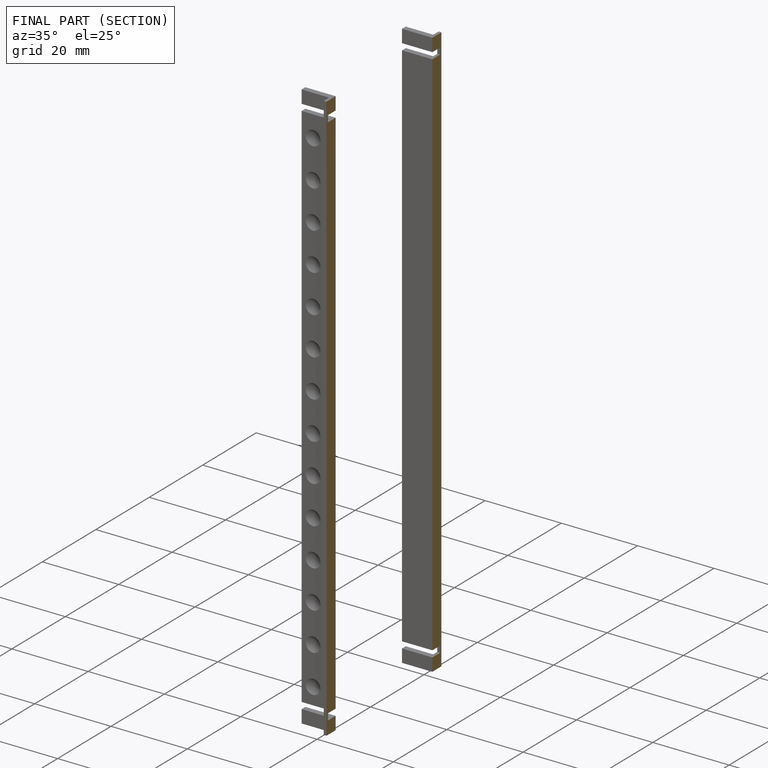
[diagram: finished part — half-section view (interior)]
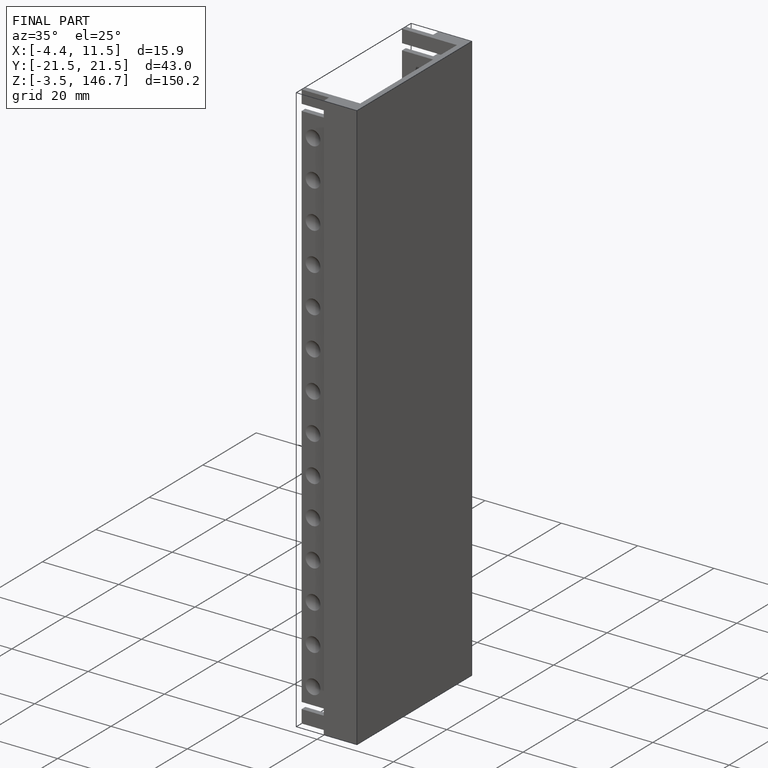
[diagram: finished part — iso view with bounding-box wireframe]
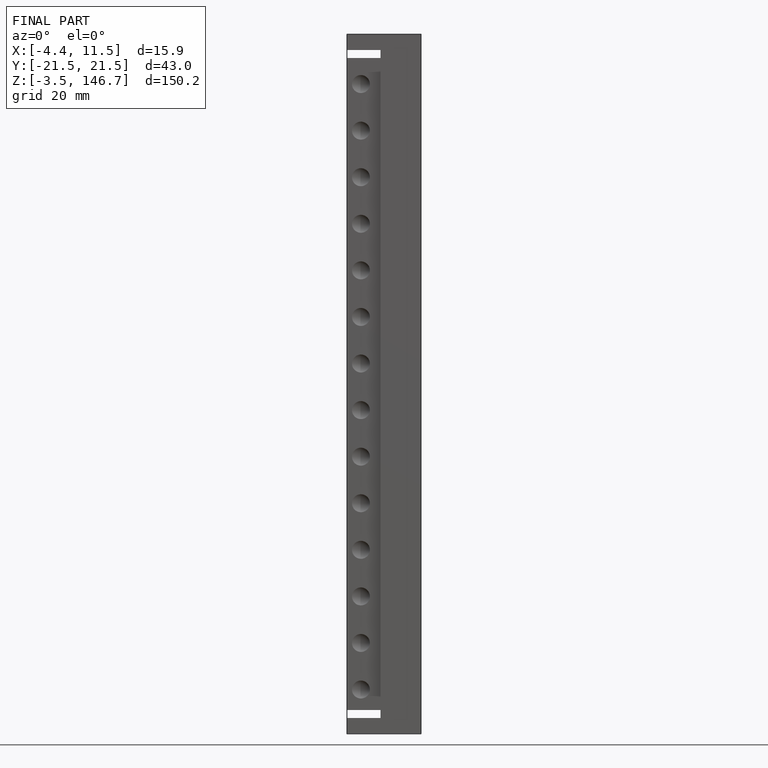
[diagram: finished part — front view with bounding-box wireframe]
